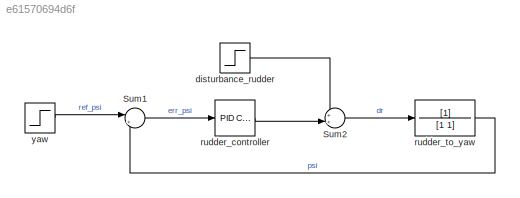
MODEL slx_e61570694d6f
KIND model
CONFIG AbsTol = auto
CONFIG EnableMultiTasking = off
CONFIG FixedStep = auto
CONFIG MaxStep = auto
CONFIG MinStep = auto
CONFIG RelTol = 1e-3
CONFIG SampleTimeConstraint = Unconstrained
CONFIG SolverName = VariableStepAuto
CONFIG StartTime = 0.0
CONFIG StopTime = 10.0
BLOCK [Sum] Sum1
  Inputs = |++
BLOCK [Sum] Sum2
  Inputs = ++|
BLOCK [Step] disturbance_rudder
  SampleTime = 0
BLOCK [Reference] rudder_controller  REF=slpidlib/PID Controller
  LibrarySourceBlock = simulink/Continuous/PID Controller
  SourceBlock = slpidlib/PID Controller
  SourceType = PID 1dof
BLOCK [TransferFcn] rudder_to_yaw
  Denominator = [1 1]
BLOCK [Step] yaw
  SampleTime = 0
LINE Sum1:1 -> rudder_controller:1
LINE Sum2:1 -> rudder_to_yaw:1
LINE disturbance_rudder:1 -> Sum2:1
LINE rudder_controller:1 -> Sum2:2
LINE rudder_to_yaw:1 -> Sum1:2
LINE yaw:1 -> Sum1:1
